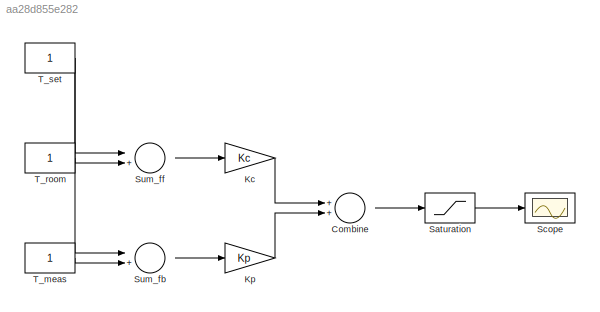
MODEL slx_aa28d855e282
KIND model
CONFIG AbsTol = auto
CONFIG EnableMultiTasking = off
CONFIG FixedStep = auto
CONFIG MaxStep = auto
CONFIG MinStep = auto
CONFIG RelTol = 1e-3
CONFIG SampleTimeConstraint = Unconstrained
CONFIG SolverName = VariableStepAuto
CONFIG StartTime = 0.0
CONFIG StopTime = 10.0
BLOCK [Sum] Combine
BLOCK [Gain] Kc
  Gain = Kc
BLOCK [Gain] Kp
  Gain = Kp
BLOCK [Saturate] Saturation
BLOCK [Scope] Scope
  Floating = off
  NumInputPorts = 1
BLOCK [Sum] Sum_fb
  Inputs = |+-
BLOCK [Sum] Sum_ff
  Inputs = |+-
BLOCK [Constant] T_meas
BLOCK [Constant] T_room
BLOCK [Constant] T_set
LINE Combine:1 -> Saturation:1
LINE Kc:1 -> Combine:1
LINE Kp:1 -> Combine:2
LINE Saturation:1 -> Scope:1
LINE Sum_fb:1 -> Kp:1
LINE Sum_ff:1 -> Kc:1
LINE T_meas:1 -> Sum_fb:2
LINE T_room:1 -> Sum_ff:2
NET T_set:1 -> Sum_fb:1, Sum_ff:1
note: NET lines group one-source signal fan-out (src -> all destinations, sorted); 1:1 wires keep LINE
